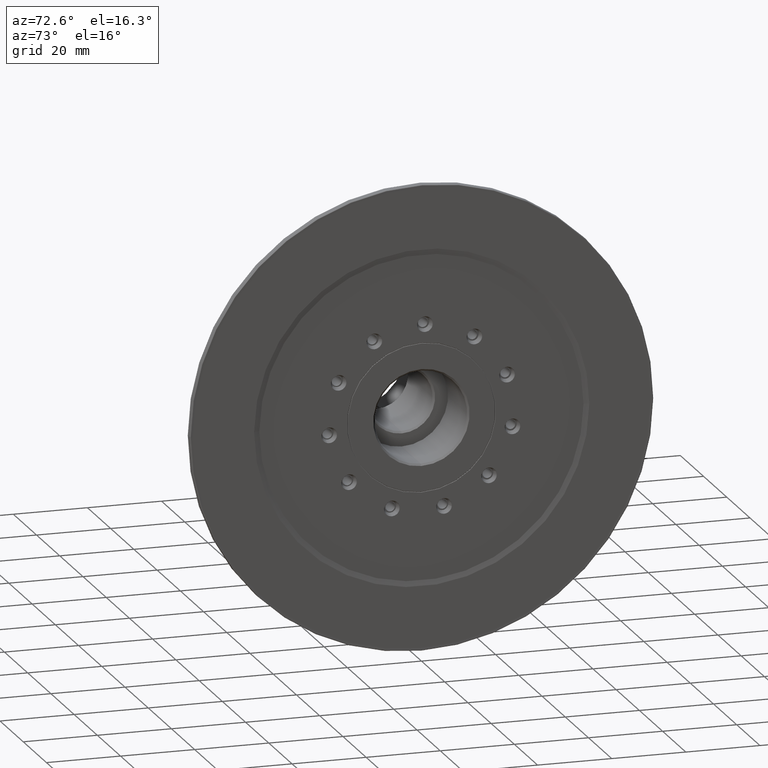
[diagram: clean part render]
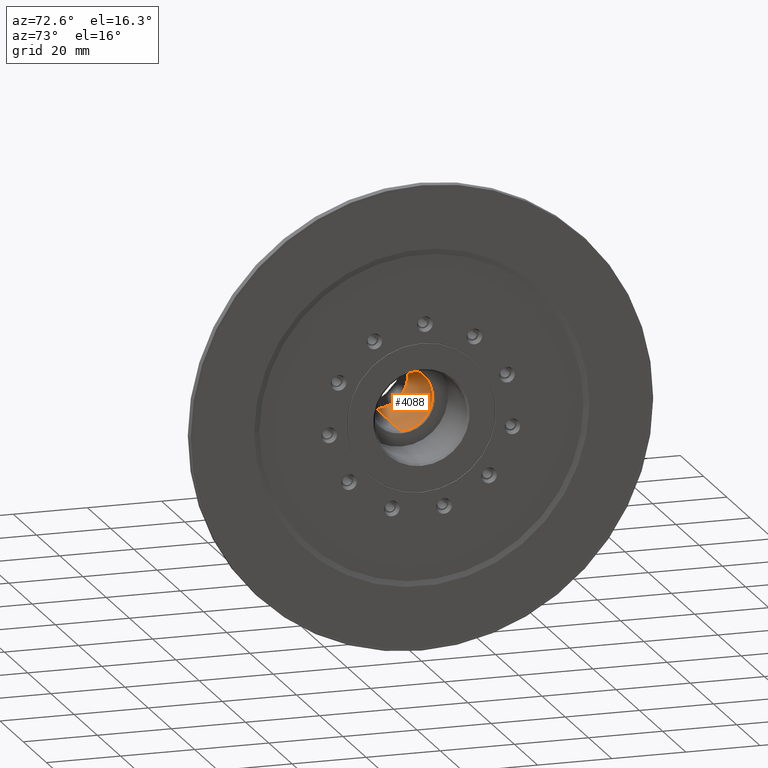
[diagram: same view with one face highlighted and labeled with its STEP entity id]
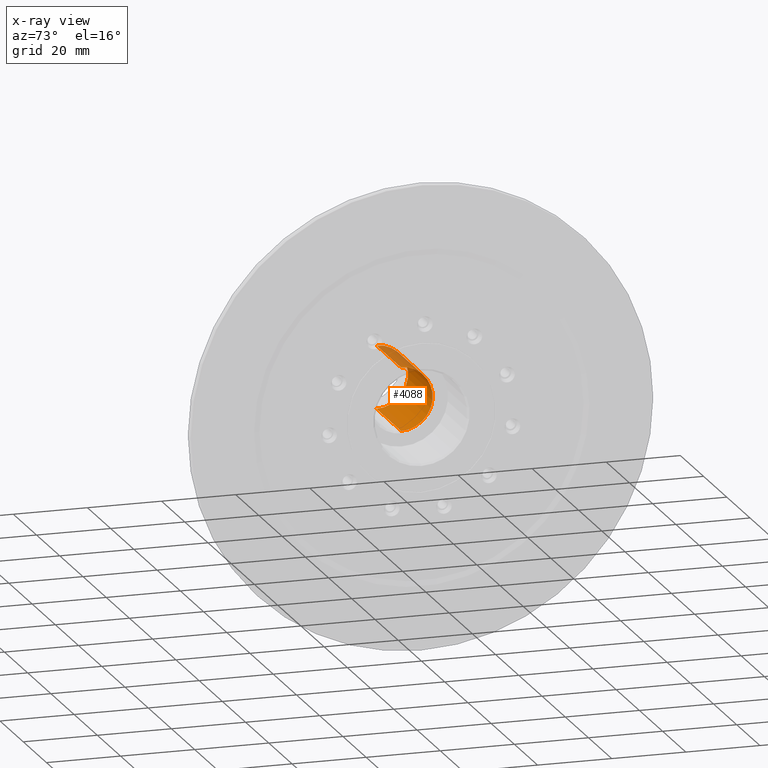
[diagram: x-ray of the same camera — body ghosted, the highlighted face saturated]
A machine part, auxiliary view. The second image highlights one B-rep face of the part: STEP entity #4088.
The next image is the same camera in x-ray: the body ghosted, the highlighted face saturated — about 15% of this face is hidden behind the body in this view.
In plain terms, the highlighted cylindrical surface (edge-blend (fillet) strip) has radius 8.5 mm, axis along (1, 0, 0).
Its self-contained STEP definition (entity closure, byte-faithful):
#140 = DIRECTION ( 'NONE',  ( 0.0000000000000000000, 0.0000000000000000000, -1.000000000000000000 ) ) ;
#218 = DIRECTION ( 'NONE',  ( 1.000000000000000000, -0.0000000000000000000, -0.0000000000000000000 ) ) ;
#232 = ORIENTED_EDGE ( 'NONE', *, *, #3976, .F. ) ;
#312 = DIRECTION ( 'NONE',  ( 1.000000000000000000, -0.0000000000000000000, -0.0000000000000000000 ) ) ;
#1062 = CARTESIAN_POINT ( 'NONE',  ( -17.49999999999999645, 0.0000000000000000000, 0.0000000000000000000 ) ) ;
#1502 = ORIENTED_EDGE ( 'NONE', *, *, #4418, .F. ) ;
#1566 = DIRECTION ( 'NONE',  ( 1.000000000000000000, -0.0000000000000000000, -0.0000000000000000000 ) ) ;
#1916 = EDGE_LOOP ( 'NONE', ( #1502, #232, #2935, #2482 ) ) ;
#1950 = EDGE_CURVE ( 'NONE', #3842, #4298, #4431, .T. ) ;
#2127 = DIRECTION ( 'NONE',  ( 0.0000000000000000000, 0.0000000000000000000, -1.000000000000000000 ) ) ;
#2235 = CIRCLE ( 'NONE', #6532, 8.499999999999994671 ) ;
#2405 = DIRECTION ( 'NONE',  ( 0.0000000000000000000, 0.0000000000000000000, -1.000000000000000000 ) ) ;
#2482 = ORIENTED_EDGE ( 'NONE', *, *, #4903, .T. ) ;
#2597 = DIRECTION ( 'NONE',  ( 1.000000000000000000, -0.0000000000000000000, -0.0000000000000000000 ) ) ;
#2807 = VERTEX_POINT ( 'NONE', #5940 ) ;
#2873 = LINE ( 'NONE', #3002, #3030 ) ;
#2935 = ORIENTED_EDGE ( 'NONE', *, *, #1950, .T. ) ;
#2961 = CARTESIAN_POINT ( 'NONE',  ( -17.49999999999999645, 0.0000000000000000000, -8.499999999999998224 ) ) ;
#3002 = CARTESIAN_POINT ( 'NONE',  ( 0.0000000000000000000, 1.040949779275249943E-15, 8.499999999999996447 ) ) ;
#3030 = VECTOR ( 'NONE', #2597, 1000.000000000000000 ) ;
#3804 = CARTESIAN_POINT ( 'NONE',  ( 0.0000000000000000000, 0.0000000000000000000, 0.0000000000000000000 ) ) ;
#3842 = VERTEX_POINT ( 'NONE', #5968 ) ;
#3858 = CYLINDRICAL_SURFACE ( 'NONE', #6191, 8.499999999999996447 ) ;
#3976 = EDGE_CURVE ( 'NONE', #3842, #2807, #2235, .T. ) ;
#4088 = ADVANCED_FACE ( 'NONE', ( #4180 ), #3858, .F. ) ;
#4180 = FACE_OUTER_BOUND ( 'NONE', #1916, .T. ) ;
#4298 = VERTEX_POINT ( 'NONE', #2961 ) ;
#4418 = EDGE_CURVE ( 'NONE', #2807, #5600, #2873, .T. ) ;
#4431 = LINE ( 'NONE', #5387, #4827 ) ;
#4827 = VECTOR ( 'NONE', #218, 1000.000000000000000 ) ;
#4903 = EDGE_CURVE ( 'NONE', #4298, #5600, #5363, .T. ) ;
#5224 = CARTESIAN_POINT ( 'NONE',  ( -17.49999999999999645, 1.040949779275249943E-15, 8.499999999999998224 ) ) ;
#5363 = CIRCLE ( 'NONE', #6492, 8.499999999999998224 ) ;
#5387 = CARTESIAN_POINT ( 'NONE',  ( 0.0000000000000000000, 0.0000000000000000000, -8.499999999999996447 ) ) ;
#5600 = VERTEX_POINT ( 'NONE', #5224 ) ;
#5797 = DIRECTION ( 'NONE',  ( 1.000000000000000000, -0.0000000000000000000, -0.0000000000000000000 ) ) ;
#5940 = CARTESIAN_POINT ( 'NONE',  ( -38.74972663000000495, 0.0000000000000000000, 8.499999999999994671 ) ) ;
#5968 = CARTESIAN_POINT ( 'NONE',  ( -38.74972663000000495, 1.102182119232617319E-15, -8.499999999999994671 ) ) ;
#6191 = AXIS2_PLACEMENT_3D ( 'NONE', #3804, #5797, #140 ) ;
#6492 = AXIS2_PLACEMENT_3D ( 'NONE', #1062, #1566, #2127 ) ;
#6518 = CARTESIAN_POINT ( 'NONE',  ( -38.74972663000000495, 0.0000000000000000000, 0.0000000000000000000 ) ) ;
#6532 = AXIS2_PLACEMENT_3D ( 'NONE', #6518, #312, #2405 ) ;